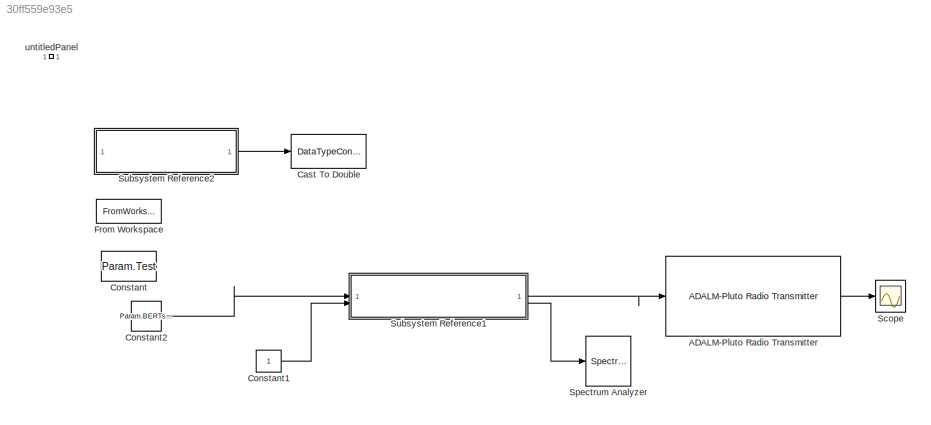
MODEL slx_30ff559e93e5
KIND model
CONFIG AbsTol = auto
CONFIG EnableMultiTasking = off
CONFIG FixedStep = auto
CONFIG MaxStep = auto
CONFIG MinStep = auto
CONFIG RelTol = 1e-3
CONFIG SampleTimeConstraint = Unconstrained
CONFIG SolverName = FixedStepAuto
CONFIG StartTime = 0.0
CONFIG StopTime = inf
BLOCK [Reference] ADALM-Pluto Radio Transmitter  REF=plutoradiolib/ADALM-Pluto Radio
Transmitter
  SourceBlock = plutoradiolib/ADALM-Pluto Radio\nTransmitter
  SourceType = comm.SDRTxPluto
BLOCK [DataTypeConversion] Cast To Double
  Commented = on
  OutDataTypeStr = double
  RndMeth = Floor
  SaturateOnIntegerOverflow = off
BLOCK [Constant] Constant
  Value = Param.Test
  VectorParams1D = off
BLOCK [Constant] Constant1
BLOCK [Constant] Constant2
  Value = Param.BERTsequence
  VectorParams1D = off
BLOCK [FromWorkspace] From Workspace
  Interpolate = off
  OutputAfterFinalValue = Setting to zero
  SampleTime = -1
  VariableName = sound.Tx
BLOCK [Scope] Scope
  Floating = off
  NumInputPorts = 1
  ScopeSpecificationString = Simulink.scopes.TimeScopeBlockCfg('CurrentConfiguration', extmgr.ConfigurationSet(extmgr.Configuration('Core','General UI',true),extmgr.Configuration('Core','Source UI',true),extmgr.Configuration('Sources','WiredSimulink',true),extmgr.Configuration('Visuals','Time Domain',true),extmgr.Configuration('Tools','Plot Navigation',true),extmgr.Configuration('Tools','Measurements',true)),'Version','2024b'...<+1ch>
BLOCK [SpectrumAnalyzer] Spectrum Analyzer
  GraphicalSettings = {"GraphicalSettings":{"Style":{"BackgroundColor":[0.12941176470588237,0.12941176470588237,0.12941176470588237],"AxesColor":[0.07058823529411765,0.07058823529411765,0.07058823529411765],"LabelsColor":[0.8509803921568627,0.8509803921568627,0.8509803921568627],"PreserveColors":true,"Visible":[true],"LineStyle":["-"],"LineWidth":[1.5],"BarWidth":[0.9],"LineColor":[[1,0.9098039215686274,0.3921568627450...<+998ch>
  ScopeFrameLocation = window
  Span = 19200
  StartFrequency = -9600
  StopFrequency = 9600
  Visible = on
  WasSavedAsWebScope = on
  WindowInvariantSamplesPerUpdate = on
  WindowPosition = [340.000000,-39.000000,958.000000,844.000000,]
  YLimits = [-119.75541579,5.57600916]
BLOCK [SubSystem] Subsystem Reference1
  ReferencedSubsystem = bare_trans_QPSK
BLOCK [SubSystem] Subsystem Reference2
  Commented = on
  ReferencedSubsystem = iLBCTransmit
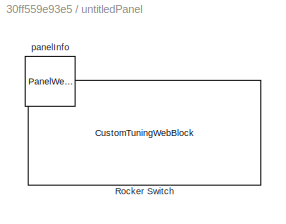
BLOCK [SubSystem] untitledPanel
  IsWebBlockPanel = on
  Tag = HiddenForWebPanel
BLOCK [CustomTuningWebBlock] untitledPanel/Rocker Switch
  Configuration = {"components":[{"name":"CustomSwitchStateComponent","settings":{"position":[0,0,1,1],"states":[{"HitRegion":{"position":[0,0,0.5,1]},"Image":{"position":[0.13,0,1,0.75],"size":[1,0.75],"src":"data:image\/svg+xml;base64,PHN2ZyB4bWxucz0iaHR0cDovL3d3dy53My5vcmcvMjAwMC9zdmciIHhtbG5zOnhsaW5rPSJodHRwOi8vd3d3LnczLm9yZy8xOTk5L3hsaW5rIiB2aWV3Qm94PSIwIDAgNzUgMjQuOCI+PGRlZnM+PHN0eWxlPi5jbHMtMXtmaWxsOnVybCgjc...<+8958ch>
  LabelPosition = Hide
  PanelInfo = {"height":94,"left":16,"panelId":"panelId-dc741246-3d43-4327-a105-89e8ea5eb984","top":35,"type":"panelChild","version":"2019b","width":207,"zIndex":1500002}
  ShowInitialText = on
  Tag = HiddenForWebPanel
BLOCK [PanelWebBlock] untitledPanel/panelInfo
  PanelInfo = {"compacted":false,"height":156,"isActiveTab":true,"left":173,"name":"Panel","panelId":"panelId-dc741246-3d43-4327-a105-89e8ea5eb984","popoutData":{"height":0,"left":0,"maximized":false,"top":0,"width":0},"popoutMode":"component","tabIndex":0,"tabbedSetId":"tabbedSet4209322271","top":195,"type":"panel","version":"2019b","visible":true,"width":667,"zIndex":1500002}
  PanelSnapshot = iVBORw0KGgoAAAANSUhEUgAAAmgAAACMCAYAAADIpVX0AAAACXBIWXMAABJ0AAASdAHeZh94AAAgAElEQVR4nO3daZcc130e8OfW1vv0zGA27PvCBSBIkaJIQqREyRJlLY6dyLF9TnLyyl/AX0Dfxm+cxLFyZIlRFFOkKUoEQQLEvhEYYPa19+5a7s2L7lq7e2bADT2D58cDdFfVrepqYM7Bw3/965aYVeo8iIiIiGhgaI/7BIiIiIgojgGNiIiIaMAwoBERERENGAY0IiIiogHDgEZEREQ0YBjQiIiIiAYMAxoRERHRgGFAIyIiIhowDGhEREREA4YBjYiIiGjAMKARERERDRgGNCIiIqIBw4BGRERENGAY0IiIiIgGDAMaERER0YBhQCMiIiIa...<+14900ch>
  Tag = HiddenForWebPanel
LINE ADALM-Pluto Radio Transmitter:1 -> Scope:1
LINE Constant1:1 -> Subsystem Reference1:2
LINE Constant2:1 -> Subsystem Reference1:1
LINE Subsystem Reference1:1 -> ADALM-Pluto Radio Transmitter:1
LINE Subsystem Reference1:2 -> Spectrum Analyzer:1
LINE Subsystem Reference2:1 -> Cast To Double:1
